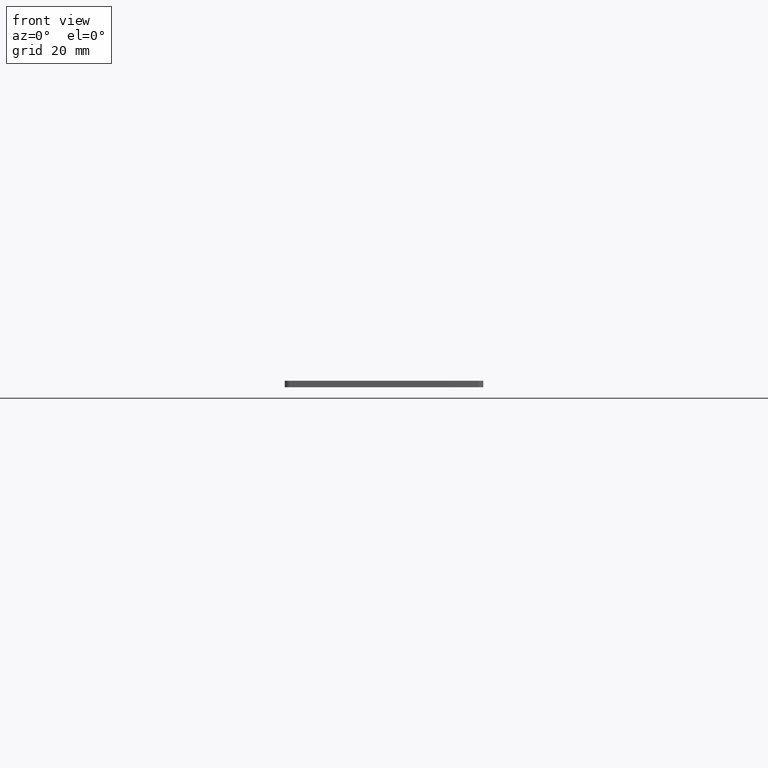
[diagram: clean part render]
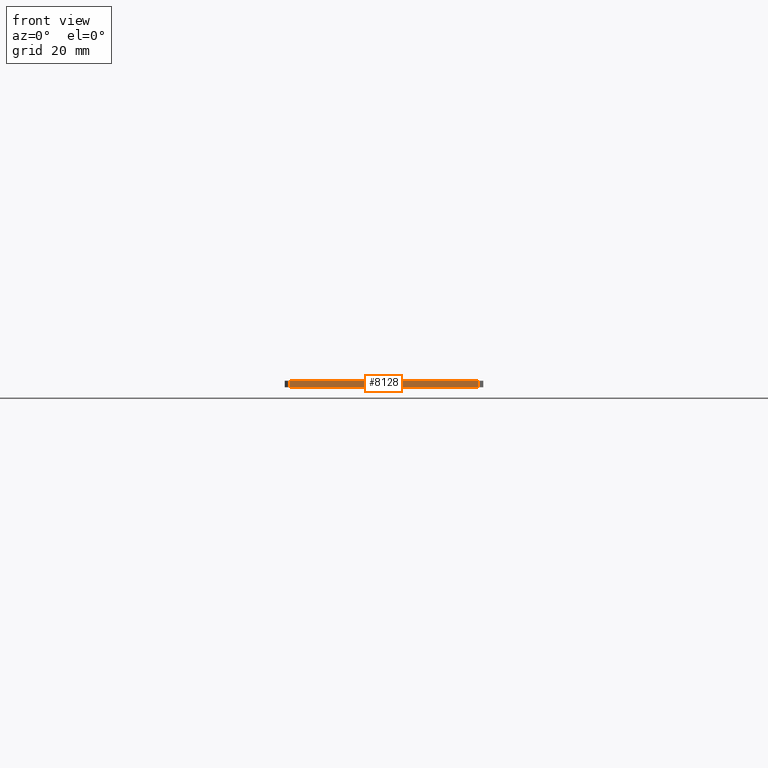
[diagram: same view with one face highlighted and labeled with its STEP entity id]
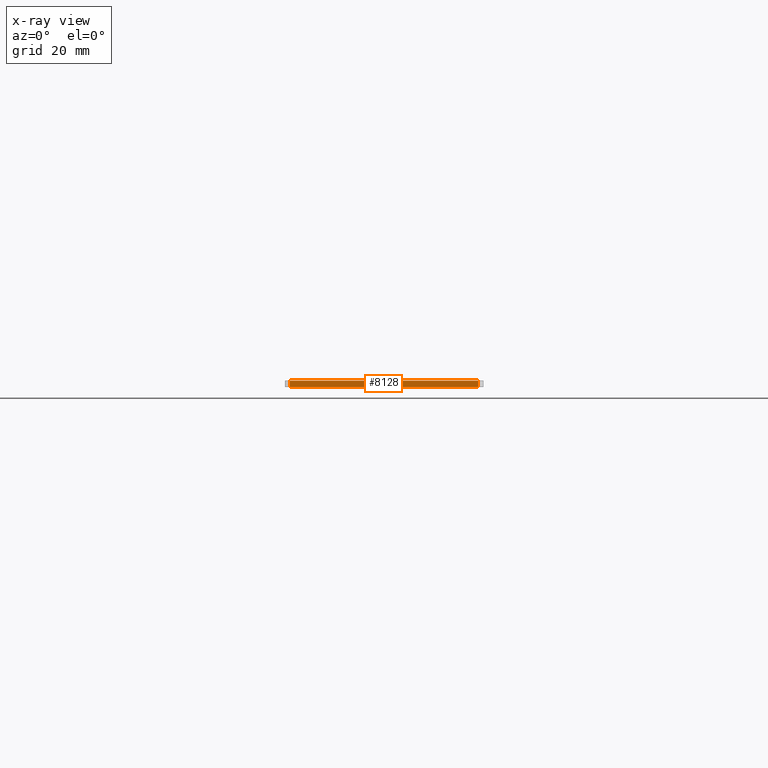
[diagram: x-ray of the same camera — body ghosted, the highlighted face saturated]
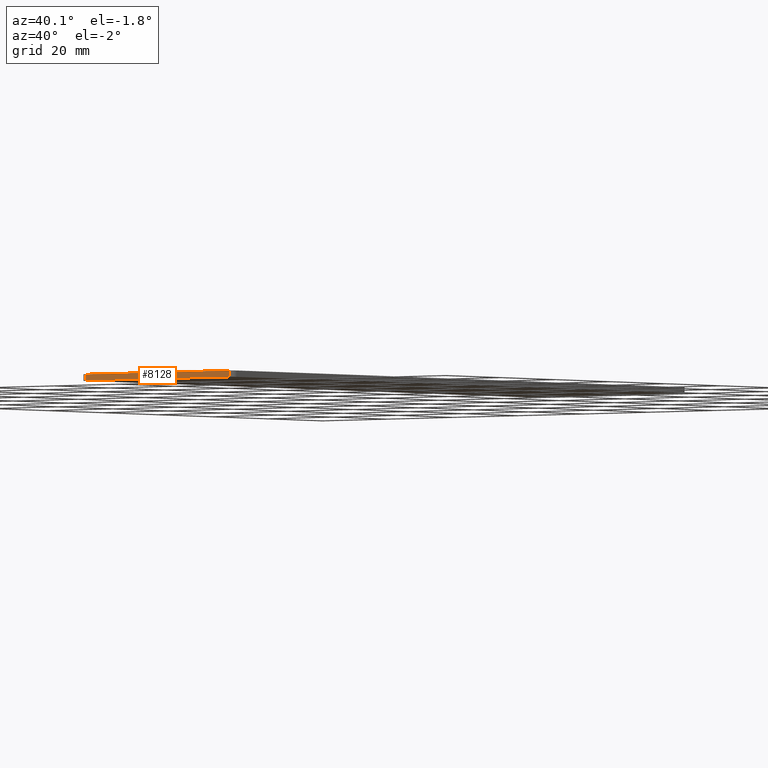
[diagram: same view with one face highlighted and labeled with its STEP entity id]
A machine part, front view. The second image highlights one B-rep face of the part: STEP entity #8128.
The next image is the same camera in x-ray: the body ghosted, the highlighted face saturated — about 0% of this face is hidden behind the body in this view.
A second angle (auxiliary view) of the same face is appended — the face is thin or edge-on in the first view.
In plain terms, the highlighted planar face has unit normal (0, 1, 0).
Its self-contained STEP definition (entity closure, byte-faithful):
#257 = VERTEX_POINT ( 'NONE', #5683 ) ;
#329 = CARTESIAN_POINT ( 'NONE',  ( -22.04999999999999400, -82.49999999999998600, 1.500000000000000000 ) ) ;
#574 = EDGE_LOOP ( 'NONE', ( #2480, #4096, #2387, #12965 ) ) ;
#815 = LINE ( 'NONE', #329, #5311 ) ;
#907 = EDGE_CURVE ( 'NONE', #257, #1072, #6846, .T. ) ;
#1072 = VERTEX_POINT ( 'NONE', #10536 ) ;
#1171 = EDGE_CURVE ( 'NONE', #8584, #6717, #4607, .T. ) ;
#1433 = DIRECTION ( 'NONE',  ( -0.0000000000000000000, -0.0000000000000000000, 1.000000000000000000 ) ) ;
#1620 = EDGE_CURVE ( 'NONE', #6717, #1072, #9727, .T. ) ;
#2083 = DIRECTION ( 'NONE',  ( 1.000000000000000000, 0.0000000000000000000, 0.0000000000000000000 ) ) ;
#2387 = ORIENTED_EDGE ( 'NONE', *, *, #907, .F. ) ;
#2480 = ORIENTED_EDGE ( 'NONE', *, *, #1171, .T. ) ;
#3627 = DIRECTION ( 'NONE',  ( 0.0000000000000000000, 1.000000000000000000, 0.0000000000000000000 ) ) ;
#3682 = PLANE ( 'NONE',  #7725 ) ;
#4096 = ORIENTED_EDGE ( 'NONE', *, *, #1620, .T. ) ;
#4270 = DIRECTION ( 'NONE',  ( -0.0000000000000000000, 0.0000000000000000000, -1.000000000000000000 ) ) ;
#4607 = LINE ( 'NONE', #7207, #9251 ) ;
#4720 = DIRECTION ( 'NONE',  ( 0.0000000000000000000, -0.0000000000000000000, 1.000000000000000000 ) ) ;
#4778 = VECTOR ( 'NONE', #7494, 1000.000000000000000 ) ;
#5311 = VECTOR ( 'NONE', #4270, 1000.000000000000000 ) ;
#5683 = CARTESIAN_POINT ( 'NONE',  ( -22.04999999999999400, -82.49999999999998600, 1.500000000000000000 ) ) ;
#5959 = FACE_OUTER_BOUND ( 'NONE', #574, .T. ) ;
#6505 = CARTESIAN_POINT ( 'NONE',  ( -23.24999999999999300, -82.49999999999998600, 1.500000000000000000 ) ) ;
#6717 = VERTEX_POINT ( 'NONE', #9797 ) ;
#6846 = LINE ( 'NONE', #6505, #4778 ) ;
#7207 = CARTESIAN_POINT ( 'NONE',  ( -23.24999999999999300, -82.49999999999998600, 0.0000000000000000000 ) ) ;
#7494 = DIRECTION ( 'NONE',  ( 1.000000000000000000, 0.0000000000000000000, 0.0000000000000000000 ) ) ;
#7723 = CARTESIAN_POINT ( 'NONE',  ( -23.24999999999999300, -82.49999999999998600, 1.500000000000000000 ) ) ;
#7725 = AXIS2_PLACEMENT_3D ( 'NONE', #7723, #3627, #4720 ) ;
#8128 = ADVANCED_FACE ( 'NONE', ( #5959 ), #3682, .F. ) ;
#8584 = VERTEX_POINT ( 'NONE', #8835 ) ;
#8835 = CARTESIAN_POINT ( 'NONE',  ( -22.04999999999999400, -82.49999999999998600, 0.0000000000000000000 ) ) ;
#9251 = VECTOR ( 'NONE', #2083, 1000.000000000000000 ) ;
#9282 = EDGE_CURVE ( 'NONE', #257, #8584, #815, .T. ) ;
#9727 = LINE ( 'NONE', #11534, #11451 ) ;
#9797 = CARTESIAN_POINT ( 'NONE',  ( 22.04999999999998600, -82.49999999999998600, 0.0000000000000000000 ) ) ;
#10536 = CARTESIAN_POINT ( 'NONE',  ( 22.04999999999998600, -82.49999999999998600, 1.500000000000000000 ) ) ;
#11451 = VECTOR ( 'NONE', #1433, 1000.000000000000000 ) ;
#11534 = CARTESIAN_POINT ( 'NONE',  ( 22.05000000000000400, -82.49999999999998600, 1.500000000000000000 ) ) ;
#12965 = ORIENTED_EDGE ( 'NONE', *, *, #9282, .T. ) ;